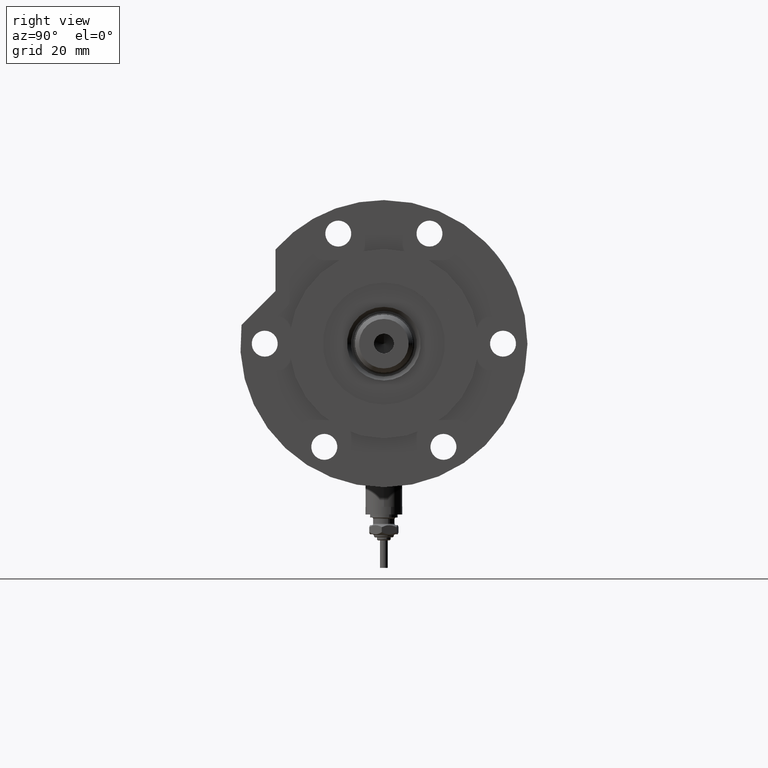
[diagram: clean part render]
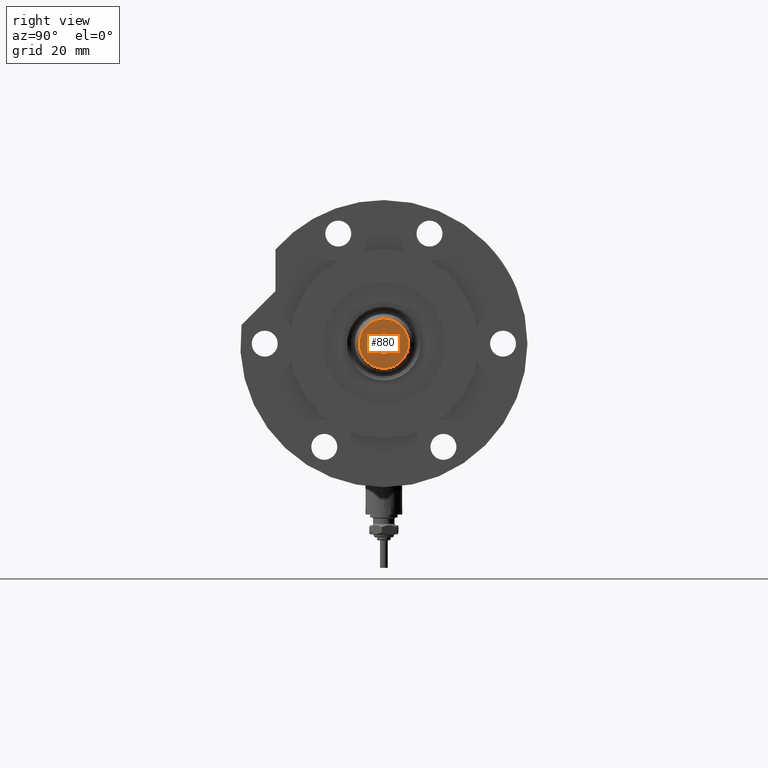
[diagram: same view with one face highlighted and labeled with its STEP entity id]
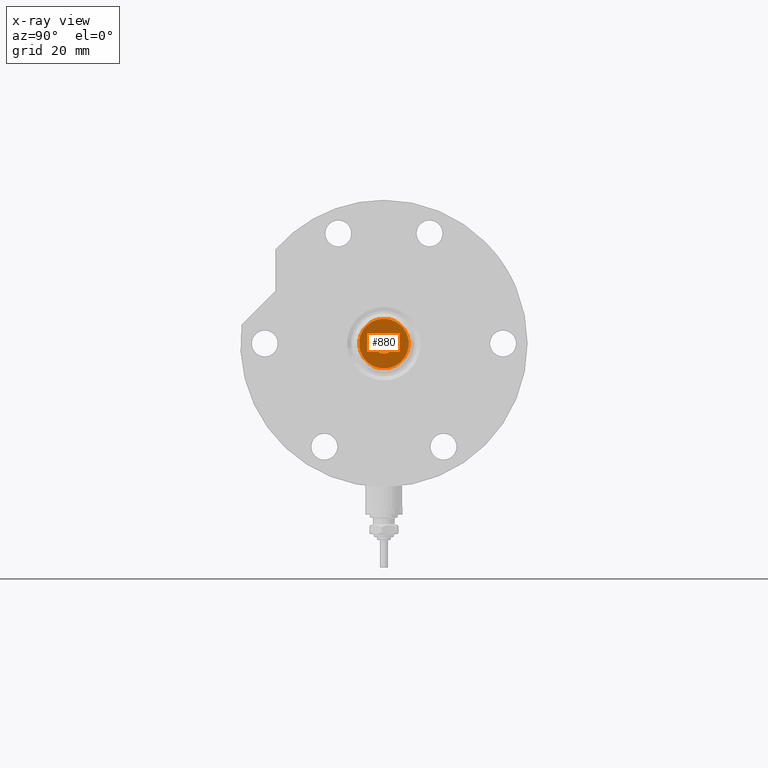
[diagram: x-ray of the same camera — body ghosted, the highlighted face saturated]
A machine part, right view. The second image highlights one B-rep face of the part: STEP entity #880.
The next image is the same camera in x-ray: the body ghosted, the highlighted face saturated — about 0% of this face is hidden behind the body in this view.
In plain terms, the highlighted planar face has unit normal (1, 0, -0).
Its self-contained STEP definition (entity closure, byte-faithful):
#188 = CIRCLE ( 'NONE', #4677, 8.099999999999981881 ) ;
#262 = VERTEX_POINT ( 'NONE', #5062 ) ;
#415 = EDGE_LOOP ( 'NONE', ( #6233, #2467 ) ) ;
#759 = DIRECTION ( 'NONE',  ( 0.000000000000000000, 0.000000000000000000, 1.000000000000000000 ) ) ;
#880 = ADVANCED_FACE ( 'NONE', ( #1380, #4916 ), #2618, .T. ) ;
#1380 = FACE_OUTER_BOUND ( 'NONE', #5095, .T. ) ;
#1691 = EDGE_CURVE ( 'NONE', #262, #2543, #3869, .T. ) ;
#1965 = CARTESIAN_POINT ( 'NONE',  ( 0.000000000000000000, 0.000000000000000000, 149.6000000000000227 ) ) ;
#2124 = VERTEX_POINT ( 'NONE', #3847 ) ;
#2467 = ORIENTED_EDGE ( 'NONE', *, *, #7921, .F. ) ;
#2543 = VERTEX_POINT ( 'NONE', #4274 ) ;
#2618 = PLANE ( 'NONE',  #6158 ) ;
#2693 = ORIENTED_EDGE ( 'NONE', *, *, #1691, .T. ) ;
#2884 = CIRCLE ( 'NONE', #6217, 3.249999999999998224 ) ;
#3022 = CARTESIAN_POINT ( 'NONE',  ( 3.249999999999998224, 0.000000000000000000, 149.6000000000000227 ) ) ;
#3065 = CARTESIAN_POINT ( 'NONE',  ( 0.000000000000000000, 0.000000000000000000, 149.6000000000000227 ) ) ;
#3192 = DIRECTION ( 'NONE',  ( 1.000000000000000000, 0.000000000000000000, -0.000000000000000000 ) ) ;
#3208 = AXIS2_PLACEMENT_3D ( 'NONE', #1965, #7375, #6780 ) ;
#3770 = CIRCLE ( 'NONE', #7616, 3.249999999999998224 ) ;
#3847 = CARTESIAN_POINT ( 'NONE',  ( -3.249999999999998224, 3.980102097228895766E-16, 149.6000000000000227 ) ) ;
#3869 = CIRCLE ( 'NONE', #3208, 8.099999999999981881 ) ;
#3882 = DIRECTION ( 'NONE',  ( 1.000000000000000000, 0.000000000000000000, 0.000000000000000000 ) ) ;
#4274 = CARTESIAN_POINT ( 'NONE',  ( -8.099999999999981881, 0.000000000000000000, 149.6000000000000227 ) ) ;
#4563 = DIRECTION ( 'NONE',  ( 1.000000000000000000, 0.000000000000000000, 0.000000000000000000 ) ) ;
#4652 = CARTESIAN_POINT ( 'NONE',  ( 0.000000000000000000, 0.000000000000000000, 149.6000000000000227 ) ) ;
#4677 = AXIS2_PLACEMENT_3D ( 'NONE', #3065, #5531, #5569 ) ;
#4780 = EDGE_CURVE ( 'NONE', #5469, #2124, #3770, .T. ) ;
#4916 = FACE_BOUND ( 'NONE', #415, .T. ) ;
#5062 = CARTESIAN_POINT ( 'NONE',  ( 8.099999999999981881, 1.077689183249669619E-15, 149.6000000000000227 ) ) ;
#5095 = EDGE_LOOP ( 'NONE', ( #6031, #2693 ) ) ;
#5160 = EDGE_CURVE ( 'NONE', #2543, #262, #188, .T. ) ;
#5469 = VERTEX_POINT ( 'NONE', #3022 ) ;
#5531 = DIRECTION ( 'NONE',  ( 0.000000000000000000, 0.000000000000000000, 1.000000000000000000 ) ) ;
#5569 = DIRECTION ( 'NONE',  ( 1.000000000000000000, 0.000000000000000000, 0.000000000000000000 ) ) ;
#6031 = ORIENTED_EDGE ( 'NONE', *, *, #5160, .T. ) ;
#6158 = AXIS2_PLACEMENT_3D ( 'NONE', #6258, #759, #3192 ) ;
#6217 = AXIS2_PLACEMENT_3D ( 'NONE', #7685, #6311, #4563 ) ;
#6233 = ORIENTED_EDGE ( 'NONE', *, *, #4780, .F. ) ;
#6258 = CARTESIAN_POINT ( 'NONE',  ( 0.000000000000000000, 0.000000000000000000, 149.6000000000000227 ) ) ;
#6311 = DIRECTION ( 'NONE',  ( -0.000000000000000000, -0.000000000000000000, 1.000000000000000000 ) ) ;
#6780 = DIRECTION ( 'NONE',  ( 1.000000000000000000, 0.000000000000000000, 0.000000000000000000 ) ) ;
#7375 = DIRECTION ( 'NONE',  ( 0.000000000000000000, 0.000000000000000000, 1.000000000000000000 ) ) ;
#7616 = AXIS2_PLACEMENT_3D ( 'NONE', #4652, #7664, #3882 ) ;
#7664 = DIRECTION ( 'NONE',  ( -0.000000000000000000, -0.000000000000000000, 1.000000000000000000 ) ) ;
#7685 = CARTESIAN_POINT ( 'NONE',  ( 0.000000000000000000, 0.000000000000000000, 149.6000000000000227 ) ) ;
#7921 = EDGE_CURVE ( 'NONE', #2124, #5469, #2884, .T. ) ;